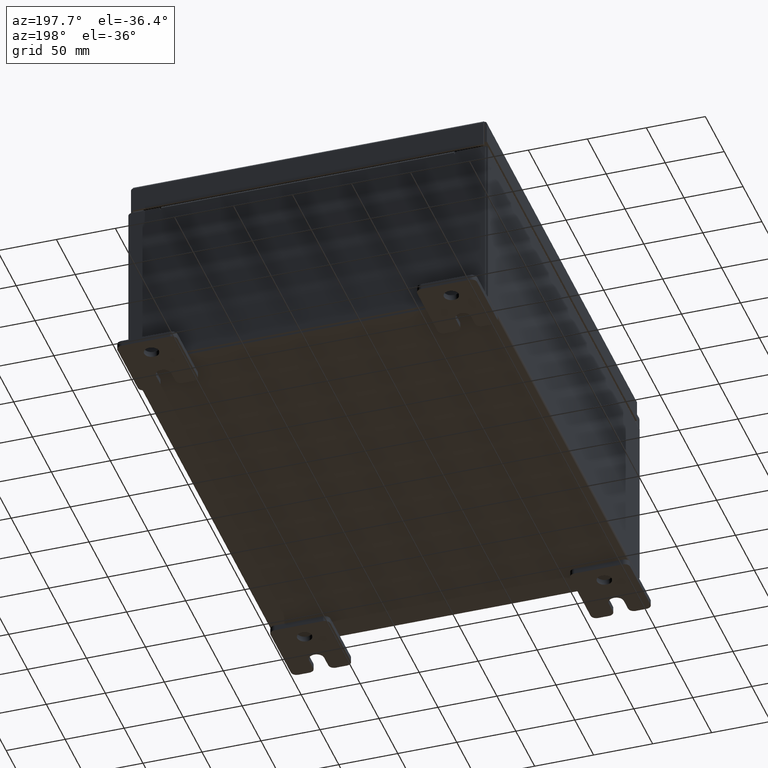
[diagram: clean part render]
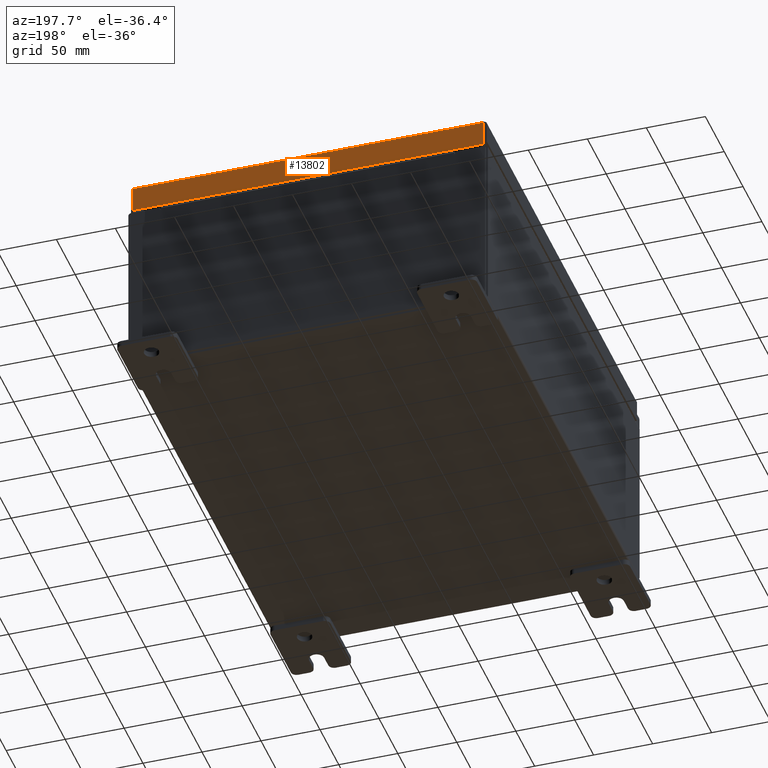
[diagram: same view with one face highlighted and labeled with its STEP entity id]
A machine part, auxiliary view. The second image highlights one B-rep face of the part: STEP entity #13802.
In plain terms, the highlighted planar face has unit normal (0, -1, -0).
Its self-contained STEP definition (entity closure, byte-faithful):
#1775 = DIRECTION ( 'NONE',  ( 4.806318896307095400E-031, -1.000000000000000000, -3.798629886902792400E-015 ) ) ;
#1938 = EDGE_CURVE ( 'NONE', #30983, #37304, #3873, .T. ) ;
#3211 = LINE ( 'NONE', #50085, #14344 ) ;
#3873 = LINE ( 'NONE', #8897, #29129 ) ;
#6768 = CARTESIAN_POINT ( 'NONE',  ( 5.848657864376267700, 7.937500000000000000, -0.08769999999999997200 ) ) ;
#8484 = EDGE_CURVE ( 'NONE', #37304, #32060, #9051, .T. ) ;
#8897 = CARTESIAN_POINT ( 'NONE',  ( -5.848657864376270300, 7.937500000000000000, -0.07469999999999972500 ) ) ;
#8923 = CARTESIAN_POINT ( 'NONE',  ( 5.848657864376267700, 7.937500000000003600, -0.9376999999999997600 ) ) ;
#9051 = LINE ( 'NONE', #23551, #58232 ) ;
#13802 = ADVANCED_FACE ( 'NONE', ( #36273 ), #58787, .F. ) ;
#14191 = DIRECTION ( 'NONE',  ( 1.000000000000000000, -0.0000000000000000000, 1.265276965486606200E-016 ) ) ;
#14344 = VECTOR ( 'NONE', #50289, 39.37007874015748100 ) ;
#15233 = VECTOR ( 'NONE', #48519, 39.37007874015748100 ) ;
#16369 = CARTESIAN_POINT ( 'NONE',  ( -5.848657864376270300, 7.937500000000000000, -0.08769999999999997200 ) ) ;
#21890 = AXIS2_PLACEMENT_3D ( 'NONE', #49213, #1775, #35025 ) ;
#23551 = CARTESIAN_POINT ( 'NONE',  ( -5.937500000000000900, 7.937500000000003600, -0.9377000000000013100 ) ) ;
#24648 = CARTESIAN_POINT ( 'NONE',  ( -5.848657864376270300, 7.937500000000003600, -0.9377000000000013100 ) ) ;
#26824 = ORIENTED_EDGE ( 'NONE', *, *, #57965, .T. ) ;
#29129 = VECTOR ( 'NONE', #30078, 39.37007874015748100 ) ;
#30078 = DIRECTION ( 'NONE',  ( -0.0000000000000000000, 3.798629886902792400E-015, -1.000000000000000000 ) ) ;
#30198 = EDGE_CURVE ( 'NONE', #60009, #30983, #54754, .T. ) ;
#30983 = VERTEX_POINT ( 'NONE', #16369 ) ;
#32060 = VERTEX_POINT ( 'NONE', #8923 ) ;
#35025 = DIRECTION ( 'NONE',  ( 0.0000000000000000000, 3.798629886902792400E-015, -1.000000000000000000 ) ) ;
#36273 = FACE_OUTER_BOUND ( 'NONE', #55315, .T. ) ;
#37304 = VERTEX_POINT ( 'NONE', #24648 ) ;
#39154 = CARTESIAN_POINT ( 'NONE',  ( -5.937500000000000900, 7.937500000000000000, -0.08769999999999997200 ) ) ;
#40470 = ORIENTED_EDGE ( 'NONE', *, *, #30198, .F. ) ;
#48519 = DIRECTION ( 'NONE',  ( -1.000000000000000000, -4.806318896307095400E-031, -1.843699422066395700E-045 ) ) ;
#49213 = CARTESIAN_POINT ( 'NONE',  ( -3.815015623943756900E-030, 7.937500000000000000, 3.041243838330249900E-014 ) ) ;
#50085 = CARTESIAN_POINT ( 'NONE',  ( 5.848657864376266800, 7.937500000000000000, 3.041243838330249900E-014 ) ) ;
#50289 = DIRECTION ( 'NONE',  ( 0.0000000000000000000, 3.798629886902792400E-015, -1.000000000000000000 ) ) ;
#53441 = ORIENTED_EDGE ( 'NONE', *, *, #8484, .F. ) ;
#54754 = LINE ( 'NONE', #39154, #15233 ) ;
#55315 = EDGE_LOOP ( 'NONE', ( #40470, #26824, #53441, #56141 ) ) ;
#56141 = ORIENTED_EDGE ( 'NONE', *, *, #1938, .F. ) ;
#57965 = EDGE_CURVE ( 'NONE', #60009, #32060, #3211, .T. ) ;
#58232 = VECTOR ( 'NONE', #14191, 39.37007874015748100 ) ;
#58787 = PLANE ( 'NONE',  #21890 ) ;
#60009 = VERTEX_POINT ( 'NONE', #6768 ) ;